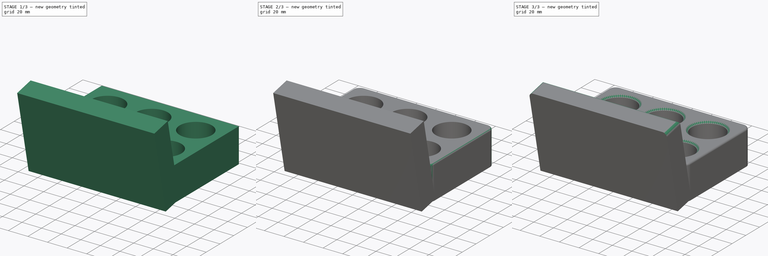
[diagram: build sequence overview — one tinted view per stage of 3, left to right]
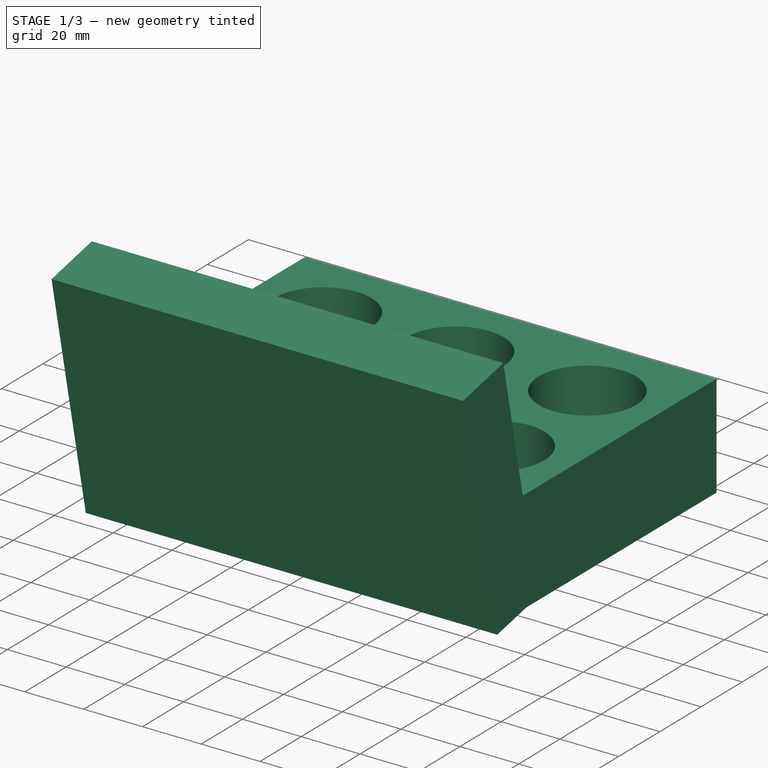
[diagram: stage 1 of 3 — iso view after this stage's code; geometry added in this stage tinted green]
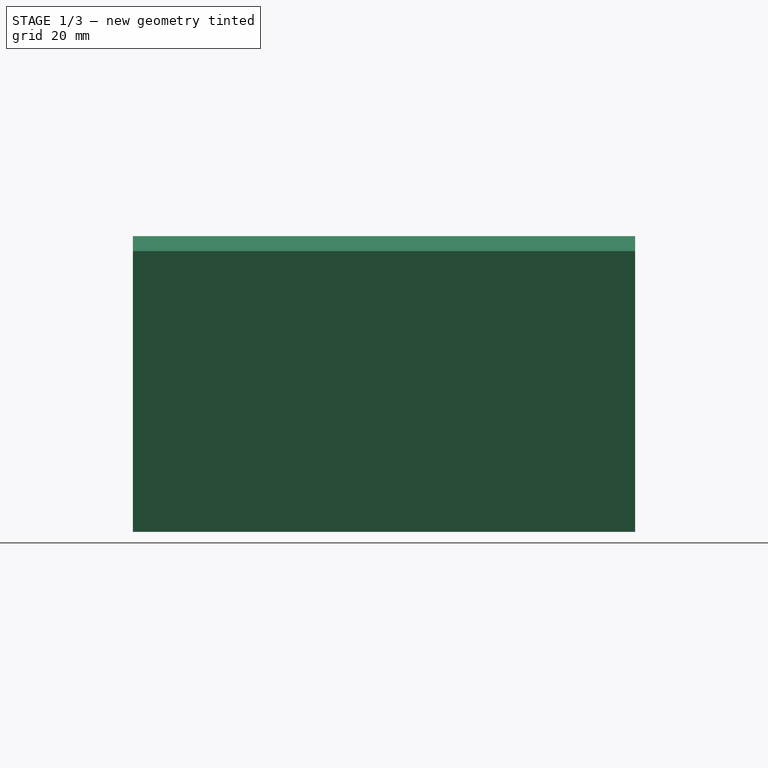
[diagram: stage 1 of 3 — front view after this stage's code; geometry added in this stage tinted green]
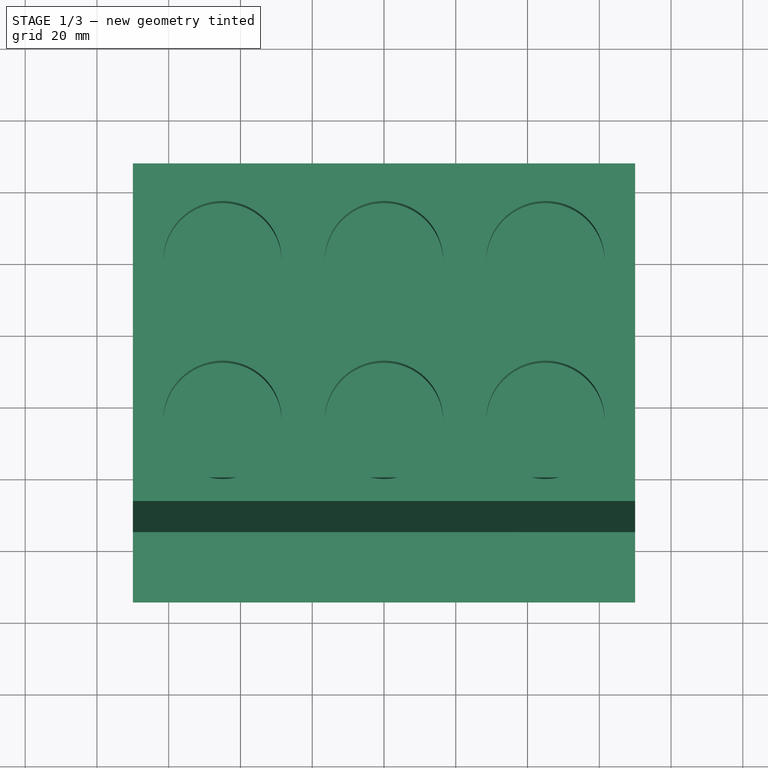
[diagram: stage 1 of 3 — top view after this stage's code; geometry added in this stage tinted green]
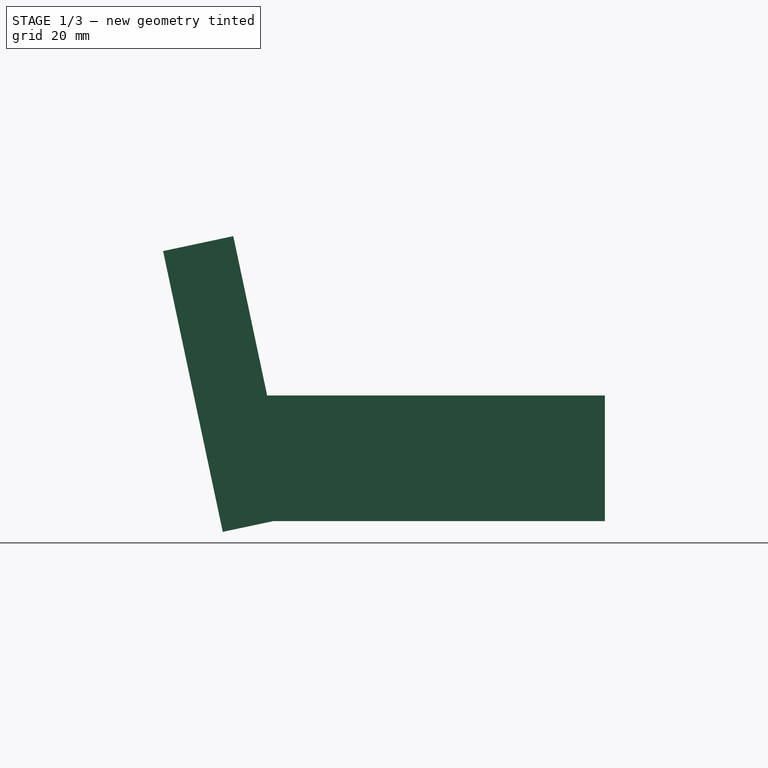
[diagram: stage 1 of 3 — right view after this stage's code; geometry added in this stage tinted green]
FCSTD DOCUMENT  (FreeCAD 0.16R)
Label: 5Crack-horiz
License: All rights reserved
LicenseURL: http://en.wikipedia.org/wiki/All_rights_reserved
objects: PartDesign::Fillet×3, Sketcher::SketchObject×2, PartDesign::Pad×1, PartDesign::Pocket×1, PartDesign::Chamfer×1, Part::Box×1, Part::MultiFuse×1
note: 12 computed .brp shape members not serialized (recipe doc carries the construction recipe); baked Part::Feature solids carry a one-line shape summary decoded from their .brp

FEATURE [Sketcher::SketchObject] Sketch
  sketch-geometry (4):
    g0: LineSegment StartX=-70 StartY=47.5 StartZ=0 EndX=70 EndY=47.5 EndZ=0
    g1: LineSegment StartX=70 StartY=47.5 StartZ=0 EndX=70 EndY=-47.5 EndZ=0
    g2: LineSegment StartX=70 StartY=-47.5 StartZ=0 EndX=-70 EndY=-47.5 EndZ=0
    g3: LineSegment StartX=-70 StartY=-47.5 StartZ=0 EndX=-70 EndY=47.5 EndZ=0
  constraints (11):
    c: Coincident(g0,g1)
    c: Coincident(g1,g2)
    c: Coincident(g2,g3)
    c: Coincident(g3,g0)
    c: Horizontal(g0)
    c: Horizontal(g2)
    c: Vertical(g1)
    c: Vertical(g3)
    c: Symmetric(g1,g0,g-1)
    c: Distance(g3) = 95
    c: Distance(g0) = 140
FEATURE [PartDesign::Pad] Pad
  Length = 35
  Length2 = 100
  Sketch = -> Sketch
  Type = 0
FEATURE [Sketcher::SketchObject] Sketch001
  Placement = pos=(0,0,35) rot=(0,0,1;0rad)
  Support = -> Pad [Face6]
  sketch-geometry (12):
    g0: Circle [constr] CenterX=-45 CenterY=20.5 CenterZ=0 NormalX=0 NormalY=0 NormalZ=1 Radius=20.5
    g1: Circle [constr] CenterX=45 CenterY=-24 CenterZ=0 NormalX=0 NormalY=0 NormalZ=1 Radius=20.5
    g2: Circle [constr] CenterX=0 CenterY=20.5 CenterZ=0 NormalX=0 NormalY=0 NormalZ=1 Radius=20.5
    g3: Circle [constr] CenterX=45 CenterY=20.5 CenterZ=0 NormalX=0 NormalY=0 NormalZ=1 Radius=20.5
    g4: Circle [constr] CenterX=0 CenterY=-24 CenterZ=0 NormalX=0 NormalY=0 NormalZ=1 Radius=20.5
    g5: Circle [constr] CenterX=-45 CenterY=-24 CenterZ=0 NormalX=0 NormalY=0 NormalZ=1 Radius=20.5
    g6: Circle CenterX=-45 CenterY=20.5 CenterZ=0 NormalX=0 NormalY=0 NormalZ=1 Radius=16.5
    g7: Circle CenterX=0 CenterY=20.5 CenterZ=0 NormalX=0 NormalY=0 NormalZ=1 Radius=16.5
    g8: Circle CenterX=45 CenterY=20.5 CenterZ=0 NormalX=0 NormalY=0 NormalZ=1 Radius=16.5
    g9: Circle CenterX=45 CenterY=-24 CenterZ=0 NormalX=0 NormalY=0 NormalZ=1 Radius=16.5
    g10: Circle CenterX=0 CenterY=-24 CenterZ=0 NormalX=0 NormalY=0 NormalZ=1 Radius=16.5
    g11: Circle CenterX=-45 CenterY=-24 CenterZ=0 NormalX=0 NormalY=0 NormalZ=1 Radius=16.5
  constraints (23):
    c: Radius(g1) = 20.5
    c: Equal(g1,g0)
    c: Equal(g1, g2-g5) x4
    c: PointOnObject(g2,g-2)
    c: PointOnObject(g4,g-2)
    c: Tangent(g0,g-1)
    c: Tangent(g2,g-1)
    c: Tangent(g-1,g3)
    c: DistanceX(g3) = 45
    c: DistanceX(g0) = -45
    c: DistanceX(g5) = -45
    c: DistanceX(g1) = 45
    c: DistanceY(g1) = -24
    c: DistanceY(g4) = -24
    c: DistanceY(g5) = -24
    c: Radius(g6) = 16.5
    c: Equal(g6, g7-g11) x5
    c: Coincident(g6,g0)
    c: Coincident(g7,g2)
    c: Coincident(g8,g3)
    c: Coincident(g9,g1)
    c: Coincident(g11,g5)
    c: Coincident(g10,g4)
FEATURE [PartDesign::Pocket] Pocket
  Length = 34
  Sketch = -> Sketch001
  Type = 0
FEATURE [Part::Box] Box  label="Cube"
  Height = 80
  Length = 140
  Placement = pos=(-70,-59,-3) rot=(1,0,0;0.20944rad)
  Width = 20
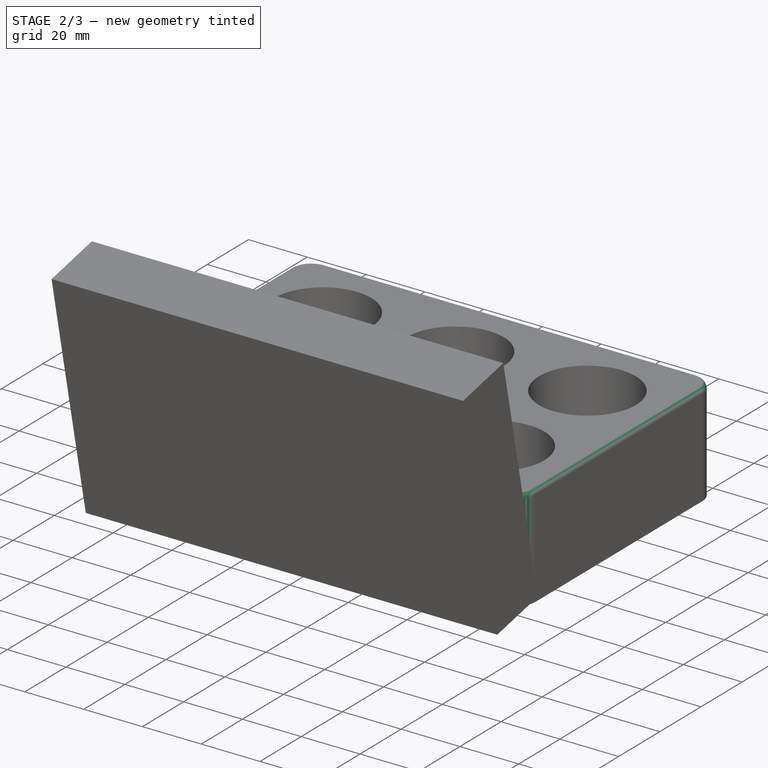
[diagram: stage 2 of 3 — iso view after this stage's code; geometry added in this stage tinted green]
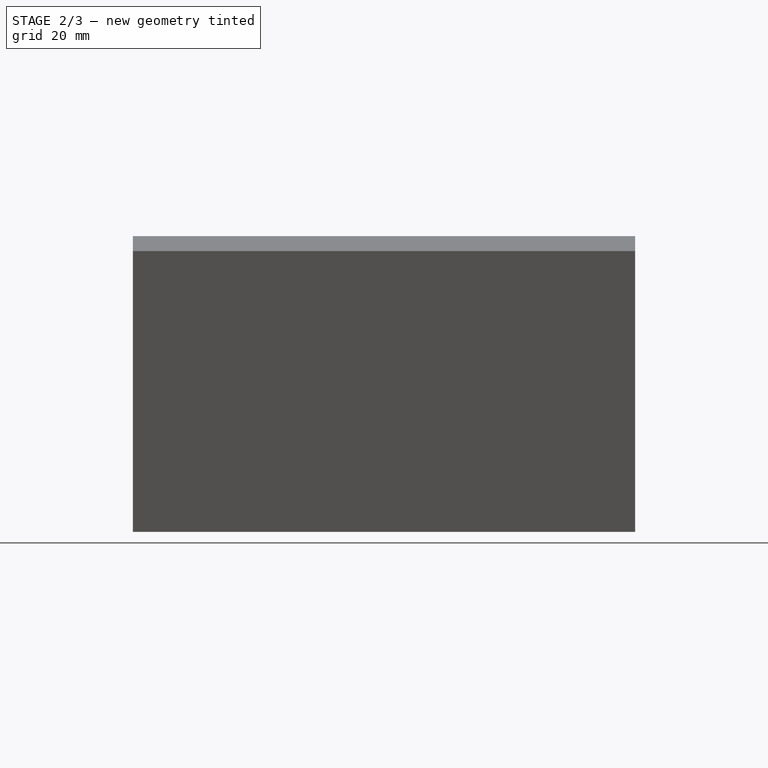
[diagram: stage 2 of 3 — front view after this stage's code; geometry added in this stage tinted green]
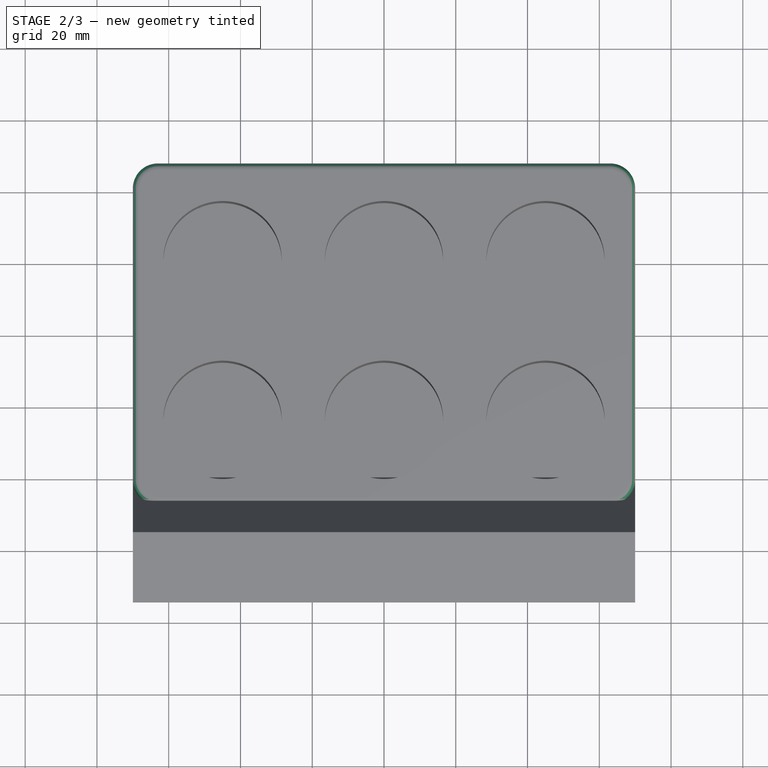
[diagram: stage 2 of 3 — top view after this stage's code; geometry added in this stage tinted green]
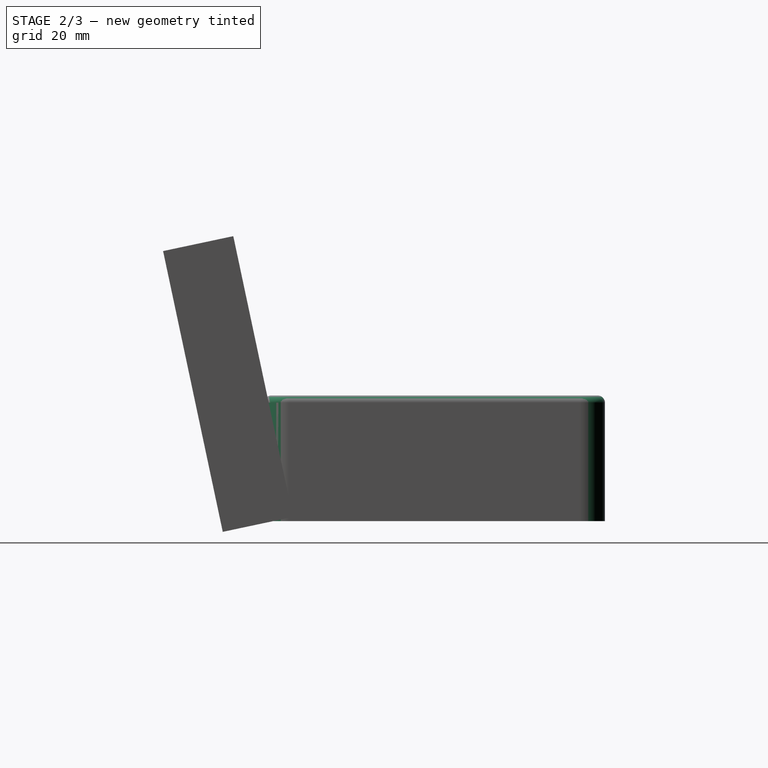
[diagram: stage 2 of 3 — right view after this stage's code; geometry added in this stage tinted green]
FEATURE [PartDesign::Fillet] Fillet
  Base = -> Pocket [Edge5,Edge8,Edge2,Edge1]
  Radius = 7
FEATURE [PartDesign::Fillet] Fillet001
  Base = -> Fillet [Edge20,Edge16,Edge4,Edge17]
  Radius = 2
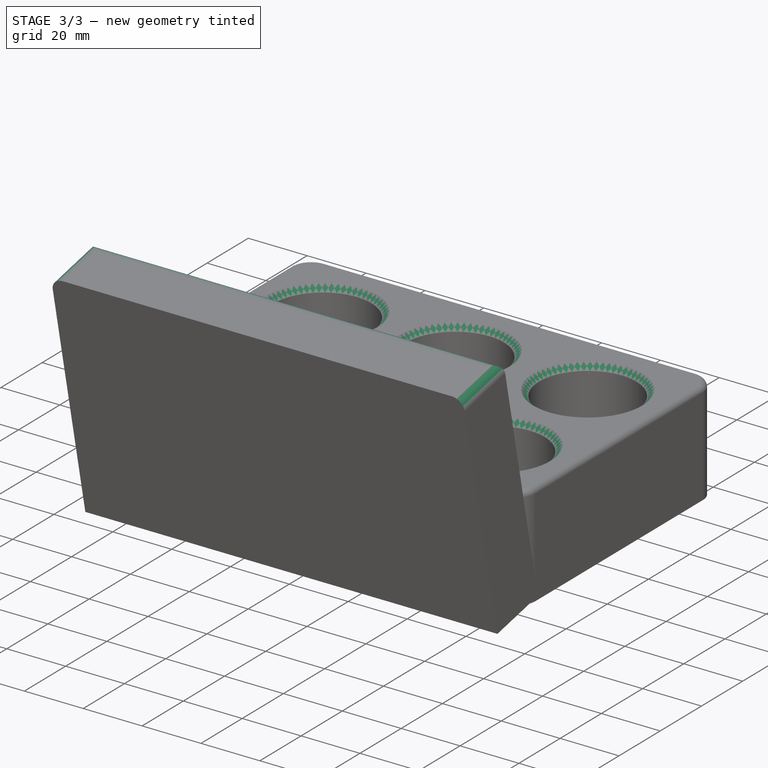
[diagram: stage 3 of 3 — iso view after this stage's code; geometry added in this stage tinted green]
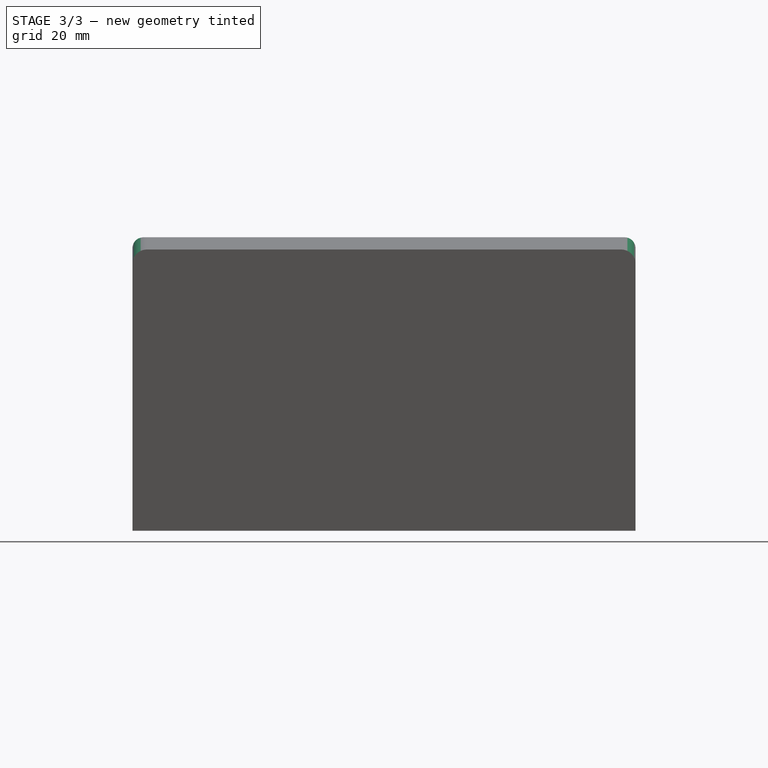
[diagram: stage 3 of 3 — front view after this stage's code; geometry added in this stage tinted green]
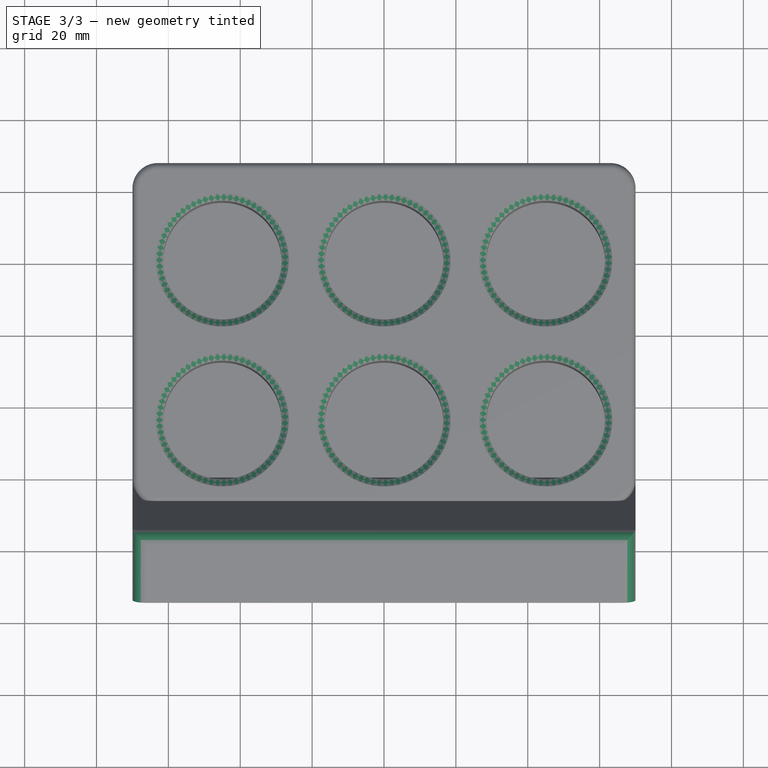
[diagram: stage 3 of 3 — top view after this stage's code; geometry added in this stage tinted green]
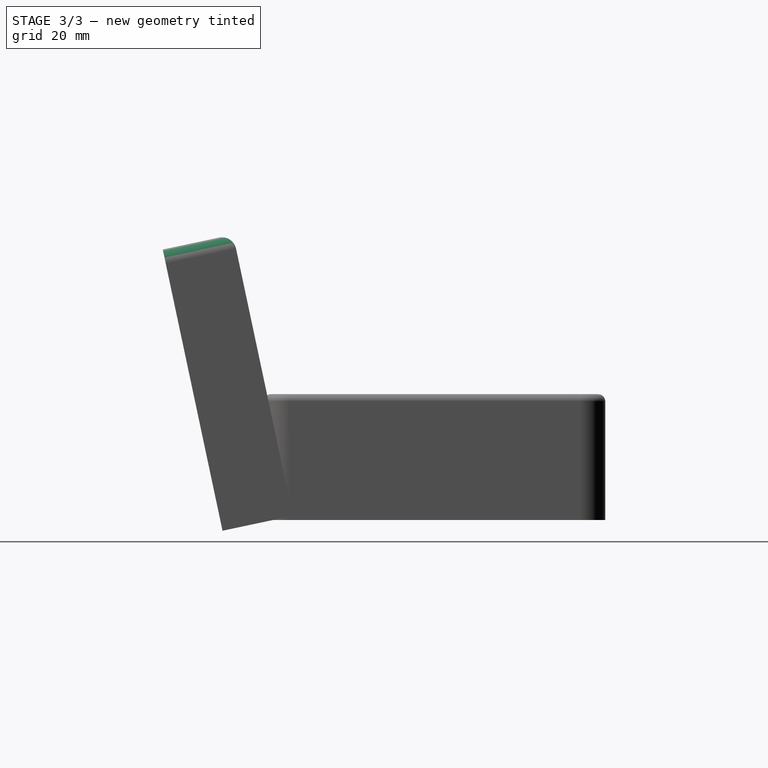
[diagram: stage 3 of 3 — right view after this stage's code; geometry added in this stage tinted green]
FEATURE [PartDesign::Chamfer] Chamfer
  Base = -> Fillet001 [Edge34,Edge33,Edge30,Edge29,Edge31,Edge32]
  Size = 2
FEATURE [Part::MultiFuse] Fusion
  Shapes = -> [Chamfer,Box]
FEATURE [PartDesign::Fillet] Fillet002
  Base = -> Fusion [Edge3,Edge1,Edge2]
  Radius = 4
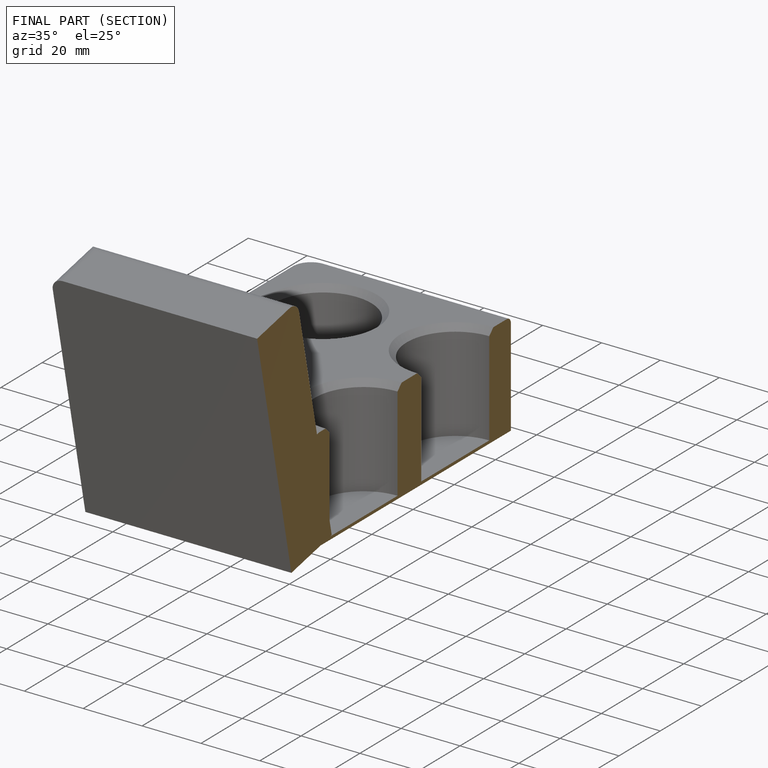
[diagram: finished part — half-section view (interior)]
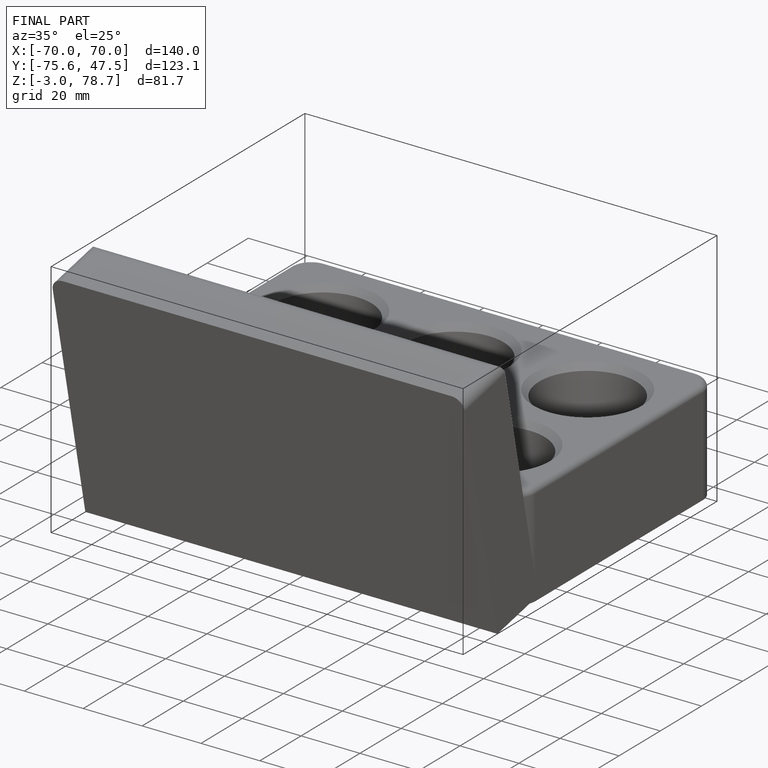
[diagram: finished part — iso view with bounding-box wireframe]
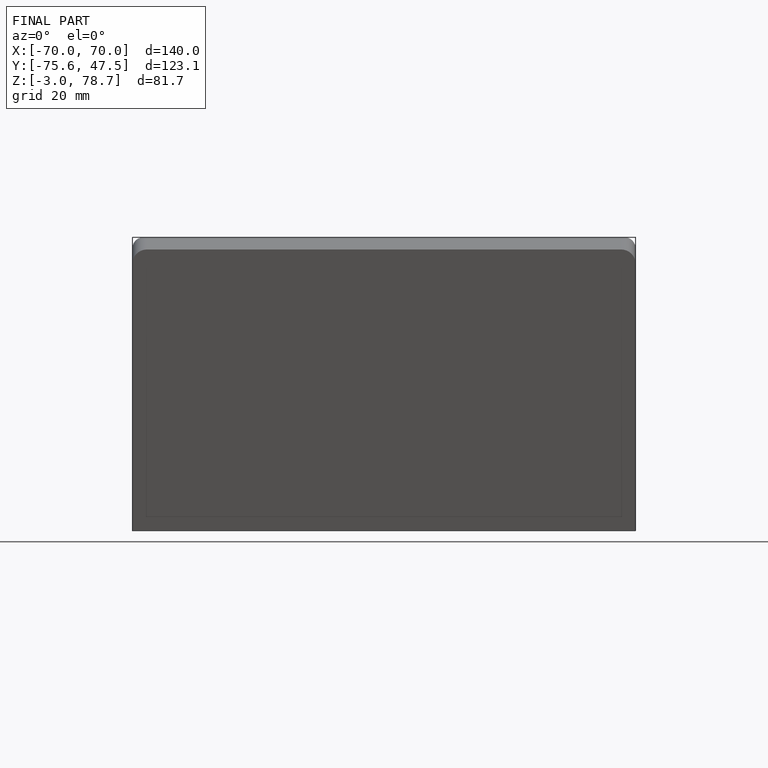
[diagram: finished part — front view with bounding-box wireframe]
